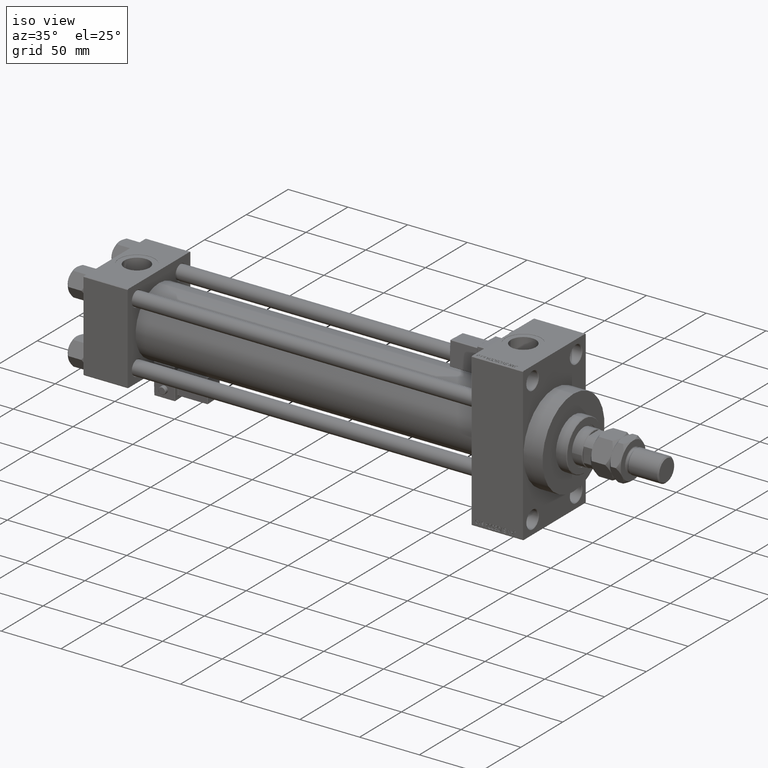
[diagram: clean part render]
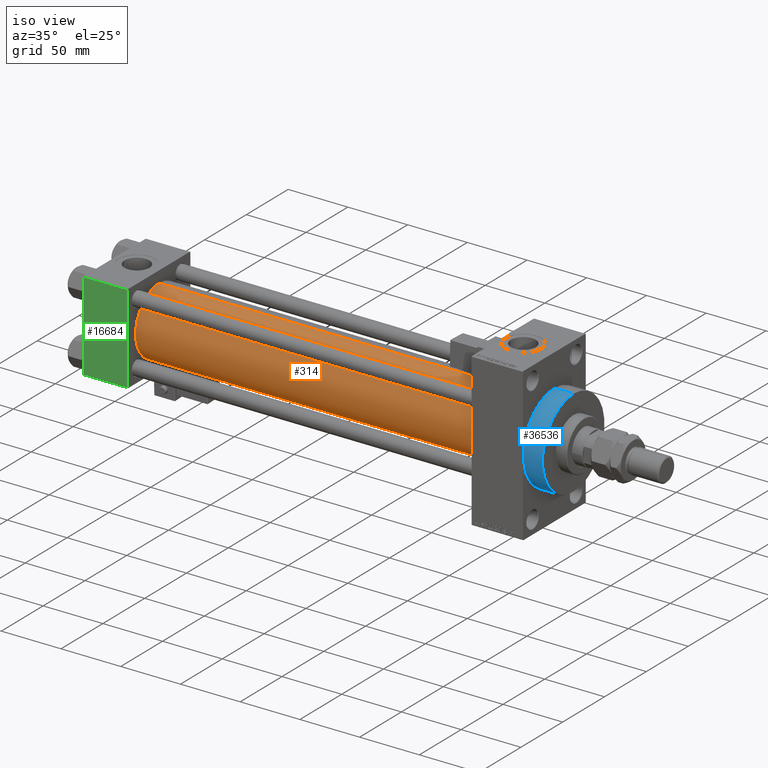
[diagram: same view with three faces highlighted in distinct colors, each labeled with its STEP entity id]
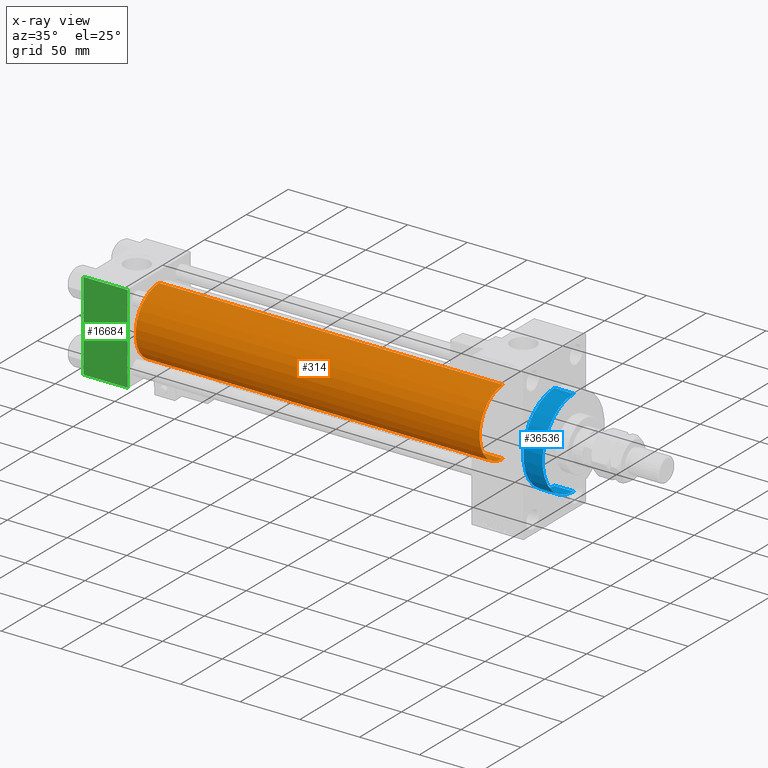
[diagram: x-ray of the same camera — body ghosted, the three highlighted faces saturated]
A machine part, iso view with three faces highlighted in distinct colors.
The next image is the same camera in x-ray (body ghosted, the three faces saturated) — at least one of them is partly hidden behind the body in this view.
Their STEP definitions:

[orange] entity #314 — the highlighted cylindrical surface (partial cylindrical patch) has radius 28 mm, axis along (-1, -0, -0).
#314 = ADVANCED_FACE ( 'NONE', ( #21663 ), #13347, .T. ) ;
#2798 = CIRCLE ( 'NONE', #32770, 28.00000000000000000 ) ;
#4218 = DIRECTION ( 'NONE',  ( 0.000000000000000000, 0.000000000000000000, 1.000000000000000000 ) ) ;
#7966 = DIRECTION ( 'NONE',  ( 1.000000000000000000, 0.000000000000000000, 0.000000000000000000 ) ) ;
#8942 = LINE ( 'NONE', #49739, #37216 ) ;
#10315 = EDGE_LOOP ( 'NONE', ( #34996, #14245, #41061, #13465 ) ) ;
#13136 = VERTEX_POINT ( 'NONE', #35995 ) ;
#13347 = CYLINDRICAL_SURFACE ( 'NONE', #32070, 28.00000000000000000 ) ;
#13465 = ORIENTED_EDGE ( 'NONE', *, *, #42603, .T. ) ;
#13891 = VECTOR ( 'NONE', #36237, 1000.000000000000000 ) ;
#14245 = ORIENTED_EDGE ( 'NONE', *, *, #21148, .F. ) ;
#18477 = EDGE_CURVE ( 'NONE', #48102, #21163, #27673, .T. ) ;
#19065 = AXIS2_PLACEMENT_3D ( 'NONE', #41529, #41796, #33213 ) ;
#20528 = VERTEX_POINT ( 'NONE', #35820 ) ;
#21148 = EDGE_CURVE ( 'NONE', #13136, #48102, #2798, .T. ) ;
#21163 = VERTEX_POINT ( 'NONE', #52013 ) ;
#21663 = FACE_OUTER_BOUND ( 'NONE', #10315, .T. ) ;
#21831 = CARTESIAN_POINT ( 'NONE',  ( 324.9999999999999432, 8.269258236473784371E-16, -28.00000000000000000 ) ) ;
#27673 = LINE ( 'NONE', #28709, #13891 ) ;
#28709 = CARTESIAN_POINT ( 'NONE',  ( 324.9999999999999432, 8.269258236473784371E-16, -28.00000000000000000 ) ) ;
#32070 = AXIS2_PLACEMENT_3D ( 'NONE', #40969, #42044, #4218 ) ;
#32770 = AXIS2_PLACEMENT_3D ( 'NONE', #53040, #7966, #40421 ) ;
#33213 = DIRECTION ( 'NONE',  ( 0.000000000000000000, 0.000000000000000000, 1.000000000000000000 ) ) ;
#34996 = ORIENTED_EDGE ( 'NONE', *, *, #18477, .F. ) ;
#35346 = CIRCLE ( 'NONE', #19065, 28.00000000000000000 ) ;
#35820 = CARTESIAN_POINT ( 'NONE',  ( 36.99999999999997868, -2.602085213965210642E-15, 28.00000000000000000 ) ) ;
#35995 = CARTESIAN_POINT ( 'NONE',  ( 324.9999999999999432, -2.602085213965210642E-15, 28.00000000000000000 ) ) ;
#36237 = DIRECTION ( 'NONE',  ( -1.000000000000000000, -0.000000000000000000, -0.000000000000000000 ) ) ;
#37216 = VECTOR ( 'NONE', #45160, 1000.000000000000000 ) ;
#40421 = DIRECTION ( 'NONE',  ( 0.000000000000000000, 0.000000000000000000, -1.000000000000000000 ) ) ;
#40969 = CARTESIAN_POINT ( 'NONE',  ( 324.9999999999999432, -2.602085213965210642E-15, 0.000000000000000000 ) ) ;
#41061 = ORIENTED_EDGE ( 'NONE', *, *, #51983, .T. ) ;
#41529 = CARTESIAN_POINT ( 'NONE',  ( 36.99999999999997868, -2.602085213965210642E-15, 0.000000000000000000 ) ) ;
#41796 = DIRECTION ( 'NONE',  ( 1.000000000000000000, -0.000000000000000000, 0.000000000000000000 ) ) ;
#42044 = DIRECTION ( 'NONE',  ( -1.000000000000000000, -0.000000000000000000, -0.000000000000000000 ) ) ;
#42603 = EDGE_CURVE ( 'NONE', #20528, #21163, #35346, .T. ) ;
#45160 = DIRECTION ( 'NONE',  ( -1.000000000000000000, -0.000000000000000000, -0.000000000000000000 ) ) ;
#48102 = VERTEX_POINT ( 'NONE', #21831 ) ;
#49739 = CARTESIAN_POINT ( 'NONE',  ( 324.9999999999999432, -2.602085213965210642E-15, 28.00000000000000000 ) ) ;
#51983 = EDGE_CURVE ( 'NONE', #13136, #20528, #8942, .T. ) ;
#52013 = CARTESIAN_POINT ( 'NONE',  ( 36.99999999999997868, 8.269258236473784371E-16, -28.00000000000000000 ) ) ;
#53040 = CARTESIAN_POINT ( 'NONE',  ( 324.9999999999999432, -2.602085213965210642E-15, 0.000000000000000000 ) ) ;

[blue] entity #36536 — the highlighted cylindrical surface (partial cylindrical patch) has radius 37 mm, axis along (-1, -0, -0).
#355 = DIRECTION ( 'NONE',  ( 0.000000000000000000, 0.000000000000000000, -1.000000000000000000 ) ) ;
#1098 = CIRCLE ( 'NONE', #18258, 37.00000000000000000 ) ;
#1221 = EDGE_CURVE ( 'NONE', #14371, #32041, #2284, .T. ) ;
#2284 = CIRCLE ( 'NONE', #37381, 37.00000000000000000 ) ;
#4138 = CARTESIAN_POINT ( 'NONE',  ( 367.9999999999999432, 0.000000000000000000, 37.00000000000000000 ) ) ;
#5704 = DIRECTION ( 'NONE',  ( -1.000000000000000000, -0.000000000000000000, -0.000000000000000000 ) ) ;
#6042 = DIRECTION ( 'NONE',  ( -1.000000000000000000, -0.000000000000000000, -0.000000000000000000 ) ) ;
#6940 = EDGE_CURVE ( 'NONE', #39786, #14371, #38227, .T. ) ;
#11053 = CARTESIAN_POINT ( 'NONE',  ( 383.9999999999999432, 0.000000000000000000, 37.00000000000000000 ) ) ;
#11185 = AXIS2_PLACEMENT_3D ( 'NONE', #50526, #5704, #14018 ) ;
#11207 = VERTEX_POINT ( 'NONE', #26090 ) ;
#14018 = DIRECTION ( 'NONE',  ( 0.000000000000000000, 0.000000000000000000, 1.000000000000000000 ) ) ;
#14326 = ORIENTED_EDGE ( 'NONE', *, *, #26015, .F. ) ;
#14371 = VERTEX_POINT ( 'NONE', #4138 ) ;
#18258 = AXIS2_PLACEMENT_3D ( 'NONE', #32831, #21037, #355 ) ;
#18662 = VECTOR ( 'NONE', #39218, 1000.000000000000000 ) ;
#20097 = ORIENTED_EDGE ( 'NONE', *, *, #6940, .T. ) ;
#21037 = DIRECTION ( 'NONE',  ( 1.000000000000000000, 0.000000000000000000, 0.000000000000000000 ) ) ;
#22854 = LINE ( 'NONE', #39744, #18662 ) ;
#22972 = VECTOR ( 'NONE', #6042, 1000.000000000000000 ) ;
#23358 = EDGE_LOOP ( 'NONE', ( #14326, #45521, #20097, #40648 ) ) ;
#26015 = EDGE_CURVE ( 'NONE', #11207, #32041, #22854, .T. ) ;
#26090 = CARTESIAN_POINT ( 'NONE',  ( 383.9999999999999432, 4.531193156845206793E-15, -37.00000000000000000 ) ) ;
#29920 = CARTESIAN_POINT ( 'NONE',  ( 383.9999999999999432, 0.000000000000000000, 37.00000000000000000 ) ) ;
#30647 = CYLINDRICAL_SURFACE ( 'NONE', #11185, 37.00000000000000000 ) ;
#32041 = VERTEX_POINT ( 'NONE', #45100 ) ;
#32831 = CARTESIAN_POINT ( 'NONE',  ( 383.9999999999999432, 0.000000000000000000, 0.000000000000000000 ) ) ;
#36536 = ADVANCED_FACE ( 'NONE', ( #42456 ), #30647, .T. ) ;
#37381 = AXIS2_PLACEMENT_3D ( 'NONE', #39213, #39994, #47822 ) ;
#38227 = LINE ( 'NONE', #29920, #22972 ) ;
#39213 = CARTESIAN_POINT ( 'NONE',  ( 367.9999999999999432, 0.000000000000000000, 0.000000000000000000 ) ) ;
#39218 = DIRECTION ( 'NONE',  ( -1.000000000000000000, -0.000000000000000000, -0.000000000000000000 ) ) ;
#39744 = CARTESIAN_POINT ( 'NONE',  ( 383.9999999999999432, 4.531193156845206793E-15, -37.00000000000000000 ) ) ;
#39786 = VERTEX_POINT ( 'NONE', #11053 ) ;
#39994 = DIRECTION ( 'NONE',  ( 1.000000000000000000, 0.000000000000000000, 0.000000000000000000 ) ) ;
#40648 = ORIENTED_EDGE ( 'NONE', *, *, #1221, .T. ) ;
#42456 = FACE_OUTER_BOUND ( 'NONE', #23358, .T. ) ;
#44248 = EDGE_CURVE ( 'NONE', #39786, #11207, #1098, .T. ) ;
#45100 = CARTESIAN_POINT ( 'NONE',  ( 367.9999999999999432, 4.531193156845206793E-15, -37.00000000000000000 ) ) ;
#45521 = ORIENTED_EDGE ( 'NONE', *, *, #44248, .F. ) ;
#47822 = DIRECTION ( 'NONE',  ( 0.000000000000000000, 0.000000000000000000, -1.000000000000000000 ) ) ;
#50526 = CARTESIAN_POINT ( 'NONE',  ( 383.9999999999999432, 0.000000000000000000, 0.000000000000000000 ) ) ;

[green] entity #16684 — the highlighted planar face has unit normal (0, 1, 0).
#287 = ORIENTED_EDGE ( 'NONE', *, *, #30442, .T. ) ;
#2222 = CARTESIAN_POINT ( 'NONE',  ( 37.00000000000000000, -37.50000000000000000, -37.00000000000003553 ) ) ;
#2714 = CARTESIAN_POINT ( 'NONE',  ( 37.00000000000000000, -37.50000000000000711, 36.99999999999999289 ) ) ;
#3404 = VECTOR ( 'NONE', #36505, 1000.000000000000000 ) ;
#3583 = CARTESIAN_POINT ( 'NONE',  ( 0.000000000000000000, -37.50000000000000711, 36.99999999999999289 ) ) ;
#4745 = ORIENTED_EDGE ( 'NONE', *, *, #18409, .F. ) ;
#6071 = AXIS2_PLACEMENT_3D ( 'NONE', #17448, #49296, #37459 ) ;
#12307 = EDGE_CURVE ( 'NONE', #23190, #26470, #49130, .T. ) ;
#12330 = VECTOR ( 'NONE', #50816, 1000.000000000000000 ) ;
#12520 = ORIENTED_EDGE ( 'NONE', *, *, #12307, .T. ) ;
#16684 = ADVANCED_FACE ( 'NONE', ( #18523 ), #34875, .F. ) ;
#17448 = CARTESIAN_POINT ( 'NONE',  ( 37.00000000000000000, -37.50000000000000711, 37.49999999999999289 ) ) ;
#18409 = EDGE_CURVE ( 'NONE', #26092, #24681, #39746, .T. ) ;
#18523 = FACE_OUTER_BOUND ( 'NONE', #19784, .T. ) ;
#18852 = CARTESIAN_POINT ( 'NONE',  ( 37.00000000000000000, -37.50000000000000711, 37.49999999999999289 ) ) ;
#19104 = DIRECTION ( 'NONE',  ( -1.000000000000000000, 0.000000000000000000, 0.000000000000000000 ) ) ;
#19784 = EDGE_LOOP ( 'NONE', ( #12520, #41564, #4745, #287 ) ) ;
#23190 = VERTEX_POINT ( 'NONE', #3583 ) ;
#23304 = EDGE_CURVE ( 'NONE', #26470, #24681, #43016, .T. ) ;
#24681 = VERTEX_POINT ( 'NONE', #48572 ) ;
#26092 = VERTEX_POINT ( 'NONE', #37285 ) ;
#26371 = VECTOR ( 'NONE', #19104, 1000.000000000000000 ) ;
#26470 = VERTEX_POINT ( 'NONE', #29986 ) ;
#27589 = VECTOR ( 'NONE', #31177, 1000.000000000000000 ) ;
#29986 = CARTESIAN_POINT ( 'NONE',  ( 0.000000000000000000, -37.50000000000000000, -37.00000000000003553 ) ) ;
#30442 = EDGE_CURVE ( 'NONE', #26092, #23190, #44804, .T. ) ;
#31177 = DIRECTION ( 'NONE',  ( 0.000000000000000000, 9.251858538542971581E-17, -1.000000000000000000 ) ) ;
#34875 = PLANE ( 'NONE',  #6071 ) ;
#36505 = DIRECTION ( 'NONE',  ( 0.000000000000000000, 9.251858538542971581E-17, -1.000000000000000000 ) ) ;
#37285 = CARTESIAN_POINT ( 'NONE',  ( 37.00000000000000000, -37.50000000000000711, 36.99999999999999289 ) ) ;
#37459 = DIRECTION ( 'NONE',  ( 0.000000000000000000, -9.251858538542971581E-17, 1.000000000000000000 ) ) ;
#39746 = LINE ( 'NONE', #18852, #27589 ) ;
#41564 = ORIENTED_EDGE ( 'NONE', *, *, #23304, .T. ) ;
#43016 = LINE ( 'NONE', #2222, #12330 ) ;
#44804 = LINE ( 'NONE', #2714, #26371 ) ;
#45900 = CARTESIAN_POINT ( 'NONE',  ( 0.000000000000000000, -37.50000000000000711, 37.49999999999999289 ) ) ;
#48572 = CARTESIAN_POINT ( 'NONE',  ( 37.00000000000000000, -37.50000000000000000, -37.00000000000003553 ) ) ;
#49130 = LINE ( 'NONE', #45900, #3404 ) ;
#49296 = DIRECTION ( 'NONE',  ( -0.000000000000000000, 1.000000000000000000, 9.251858538542971581E-17 ) ) ;
#50816 = DIRECTION ( 'NONE',  ( 1.000000000000000000, 0.000000000000000000, 0.000000000000000000 ) ) ;